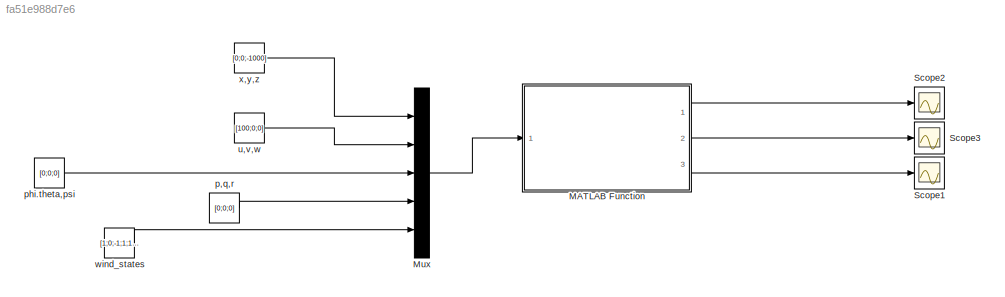
MODEL slx_fa51e988d7e6
KIND model
CONFIG AbsTol = auto
CONFIG EnableMultiTasking = off
CONFIG FixedStep = auto
CONFIG MaxStep = auto
CONFIG MinStep = auto
CONFIG RelTol = 1e-3
CONFIG SampleTimeConstraint = Unconstrained
CONFIG SolverName = VariableStepAuto
CONFIG StartTime = 0.0
CONFIG StopTime = 10.0
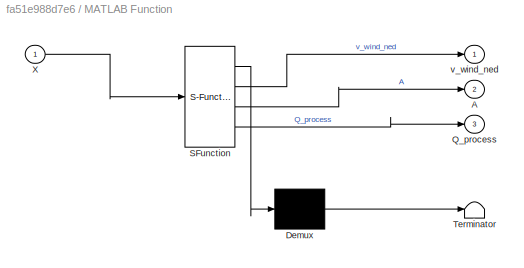
BLOCK [SubSystem] MATLAB Function
  ErrorFcn = Stateflow.Translate.translate
  PermitHierarchicalResolution = ExplicitOnly
  Ports = [1, 3]
  RequestExecContextInheritance = off
  SFBlockType = MATLAB Function
  TreatAsAtomicUnit = on
BLOCK [Demux] MATLAB Function/ Demux 
  Outputs = 1
  Ports = [1, 1]
BLOCK [S-Function] MATLAB Function/ SFunction 
  EnableBusSupport = on
  FunctionName = sf_sfun
  PortCounts = [1 4]
  Ports = [1, 4]
  SFcnIsStateOwnerBlock = off
  SFunctionDeploymentMode = off
  Tag = Stateflow S-Function 2
BLOCK [Terminator] MATLAB Function/ Terminator 
BLOCK [Outport] MATLAB Function/A
  Port = 2
BLOCK [Outport] MATLAB Function/Q_process
  Port = 3
BLOCK [Inport] MATLAB Function/X
BLOCK [Outport] MATLAB Function/v_wind_ned
BLOCK [Mux] Mux
  DisplayOption = bar
  Inputs = 5
  Ports = [5, 1]
BLOCK [Scope] Scope1
  Floating = off
  NumInputPorts = 1
  Ports = [1]
  ScopeSpecificationString = Simulink.scopes.TimeScopeBlockCfg('CurrentConfiguration', extmgr.ConfigurationSet(extmgr.Configuration('Core','General UI',true),extmgr.Configuration('Core','Source UI',true),extmgr.Configuration('Sources','WiredSimulink',true,'DataLoggingVariableName','ScopeData1'),extmgr.Configuration('Visuals','Time Domain',true,'SerializedDisplays',{struct('MinYLimReal','-0.12522','MaxYLimReal','1.12502','YLab...<+2625ch>
BLOCK [Scope] Scope2
  Floating = off
  NumInputPorts = 1
  Ports = [1]
  ScopeSpecificationString = Simulink.scopes.TimeScopeBlockCfg('CurrentConfiguration', extmgr.ConfigurationSet(extmgr.Configuration('Core','General UI',true),extmgr.Configuration('Core','Source UI',true),extmgr.Configuration('Sources','WiredSimulink',true),extmgr.Configuration('Visuals','Time Domain',true,'SerializedDisplays',{struct('MinYLimReal','-1.47038','MaxYLimReal','2.81069','YLabelReal','','MinYLimMag','0.00000','MaxY...<+1673ch>
BLOCK [Scope] Scope3
  Floating = off
  NumInputPorts = 1
  Ports = [1]
  ScopeSpecificationString = Simulink.scopes.TimeScopeBlockCfg('CurrentConfiguration', extmgr.ConfigurationSet(extmgr.Configuration('Core','General UI',true),extmgr.Configuration('Core','Source UI',true),extmgr.Configuration('Sources','WiredSimulink',true,'DataLoggingVariableName','ScopeData2'),extmgr.Configuration('Visuals','Time Domain',true,'SerializedDisplays',{struct('MinYLimReal','-0.12513','MaxYLimReal','1.12501','YLab...<+2625ch>
BLOCK [Constant] p,q,r
  Value = [0;0;0]
BLOCK [Constant] phi.theta,psi
  Value = [0;0;0]
BLOCK [Constant] u,v,w
  Value = [100;0;0]
BLOCK [Constant] wind_states
  Value = [1;0;-1;1;1;1]
BLOCK [Constant] x,y,z
  Value = [0;0;-1000]
LINE MATLAB Function:1 -> Scope2:1
LINE MATLAB Function:2 -> Scope3:1
LINE MATLAB Function:3 -> Scope1:1
LINE Mux:1 -> MATLAB Function:1
LINE p,q,r:1 -> Mux:4
LINE phi.theta,psi:1 -> Mux:3
LINE u,v,w:1 -> Mux:2
LINE wind_states:1 -> Mux:5
LINE x,y,z:1 -> Mux:1
CHART MATLAB Function states=1 transitions=1
  STATE_LABEL 'eML_blk_kernel()'
  STATE_LABEL 'SCRIPT:\nfunction [v_wind_ned,A,Q_process] = wind_model(X)\n%wind model calls the dryden model  \n    v_aircraft_NED=[0;0;0]; %initialization\n    v_aircraft_NED(1,1)=X(4,1); \n    v_aircraft_NED(2,1)=X(5,1);\n    v_aircraft_NED(3,1)=X(6,1);\n    phi=X(7,1);\n    theta=X(8,1);\n    psi=X(9,1);\n    altitude=-1*X(3,1);\n    v_wind=X(13:18,1);\n    [v_wind_ned,A,Q_process] = dryden_wind_model(v_aircraft_NED,v_w...<+3608ch>'
CHART  states=0 transitions=0
